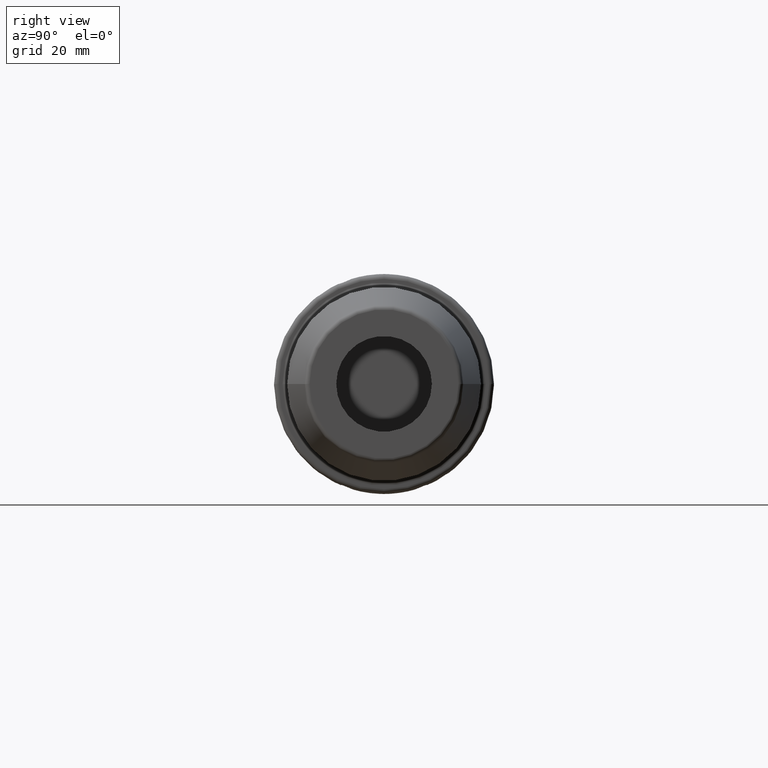
[diagram: clean part render]
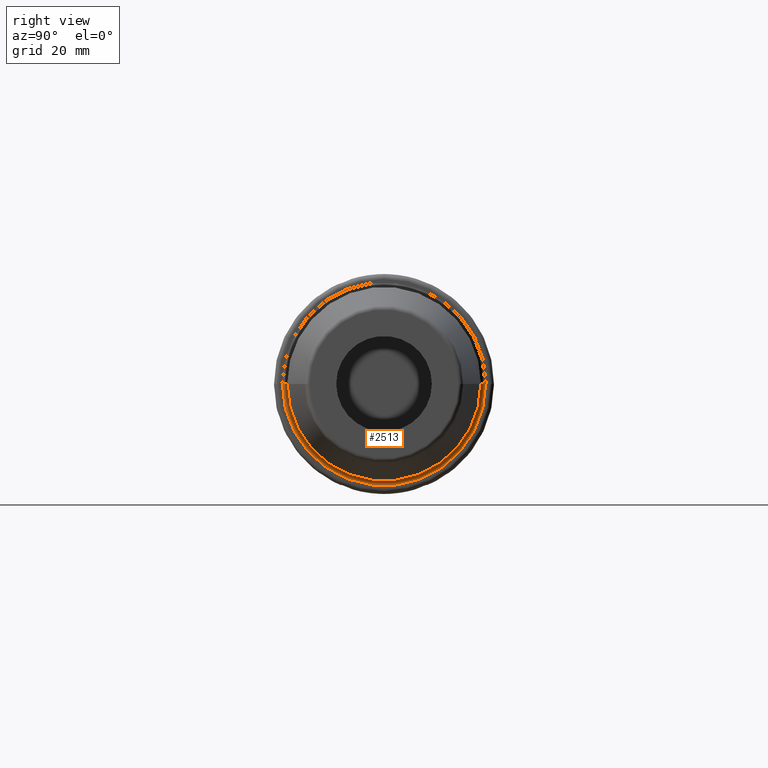
[diagram: same view with one face highlighted and labeled with its STEP entity id]
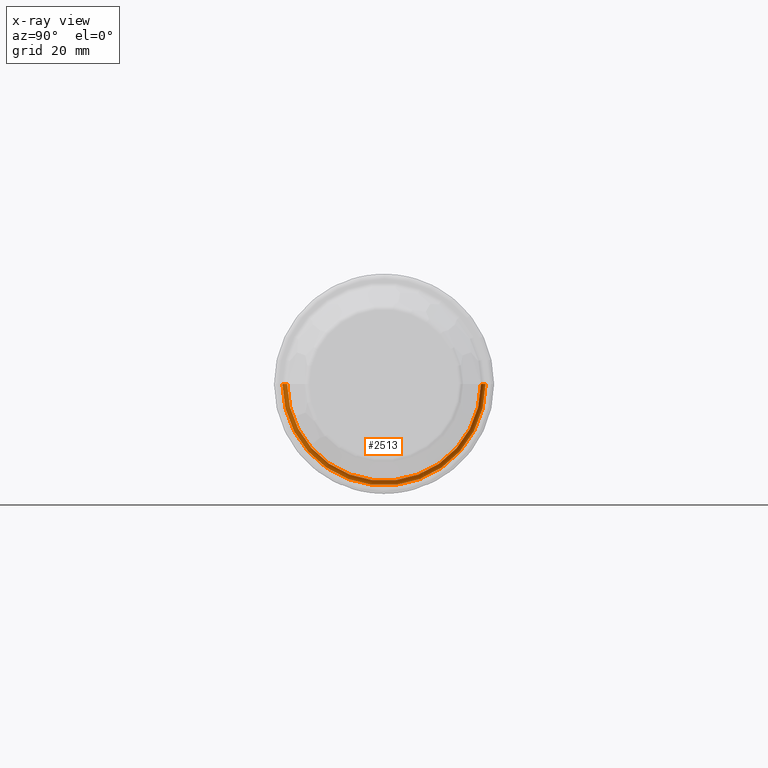
[diagram: x-ray of the same camera — body ghosted, the highlighted face saturated]
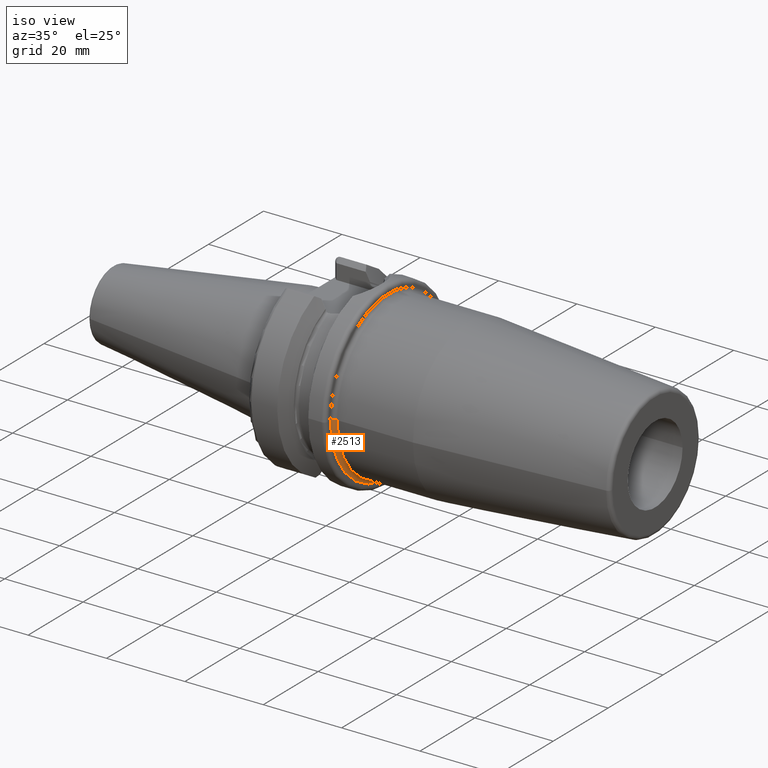
[diagram: same view with one face highlighted and labeled with its STEP entity id]
A machine part, right view. The second image highlights one B-rep face of the part: STEP entity #2513.
The next image is the same camera in x-ray: the body ghosted, the highlighted face saturated — about 0% of this face is hidden behind the body in this view.
A second angle (iso view) of the same face is appended — the face is thin or edge-on in the first view.
In plain terms, the highlighted toroidal blend (fillet) surface has major radius 21.25 mm and minor (blend) radius 1 mm.
Its self-contained STEP definition (entity closure, byte-faithful):
#822=CARTESIAN_POINT('',(2.2E1,0.E0,0.E0));
#823=DIRECTION('',(1.E0,0.E0,0.E0));
#824=DIRECTION('',(0.E0,-1.E0,0.E0));
#825=AXIS2_PLACEMENT_3D('',#822,#823,#824);
#832=CARTESIAN_POINT('',(2.3E1,-2.125E1,5.706546346573E-14));
#833=DIRECTION('',(0.E0,0.E0,-1.E0));
#834=DIRECTION('',(-1.E0,1.065814103640E-13,0.E0));
#835=AXIS2_PLACEMENT_3D('',#832,#833,#834);
#837=CARTESIAN_POINT('',(2.3E1,2.125E1,-5.989653217853E-14));
#838=DIRECTION('',(0.E0,0.E0,1.E0));
#839=DIRECTION('',(-1.E0,-1.030286966852E-13,0.E0));
#840=AXIS2_PLACEMENT_3D('',#837,#838,#839);
#852=CARTESIAN_POINT('',(2.3E1,0.E0,0.E0));
#853=DIRECTION('',(1.E0,0.E0,0.E0));
#854=DIRECTION('',(0.E0,-1.E0,0.E0));
#855=AXIS2_PLACEMENT_3D('',#852,#853,#854);
#1387=CARTESIAN_POINT('',(2.2E1,-2.125E1,0.E0));
#1388=CARTESIAN_POINT('',(2.2E1,2.125E1,0.E0));
#1389=VERTEX_POINT('',#1387);
#1390=VERTEX_POINT('',#1388);
#1391=CARTESIAN_POINT('',(2.3E1,-2.025E1,0.E0));
#1392=CARTESIAN_POINT('',(2.3E1,2.025E1,0.E0));
#1393=VERTEX_POINT('',#1391);
#1394=VERTEX_POINT('',#1392);
#2499=CARTESIAN_POINT('',(2.3E1,0.E0,0.E0));
#2500=DIRECTION('',(1.E0,0.E0,0.E0));
#2501=DIRECTION('',(0.E0,-9.999711696580E-1,7.593408507117E-3));
#2502=AXIS2_PLACEMENT_3D('',#2499,#2500,#2501);
#2503=TOROIDAL_SURFACE('',#2502,2.125E1,1.E0);
#2504=ORIENTED_EDGE('',*,*,#2492,.F.);
#2506=ORIENTED_EDGE('',*,*,#2505,.T.);
#2508=ORIENTED_EDGE('',*,*,#2507,.T.);
#2510=ORIENTED_EDGE('',*,*,#2509,.F.);
#2511=EDGE_LOOP('',(#2504,#2506,#2508,#2510));
#2512=FACE_OUTER_BOUND('',#2511,.F.);
#2513=ADVANCED_FACE('',(#2512),#2503,.F.);
#826=CIRCLE('',#825,2.125E1);
#836=CIRCLE('',#835,1.E0);
#841=CIRCLE('',#840,1.E0);
#856=CIRCLE('',#855,2.025E1);
#2492=EDGE_CURVE('',#1389,#1390,#826,.T.);
#2505=EDGE_CURVE('',#1389,#1393,#836,.T.);
#2507=EDGE_CURVE('',#1393,#1394,#856,.T.);
#2509=EDGE_CURVE('',#1390,#1394,#841,.T.);